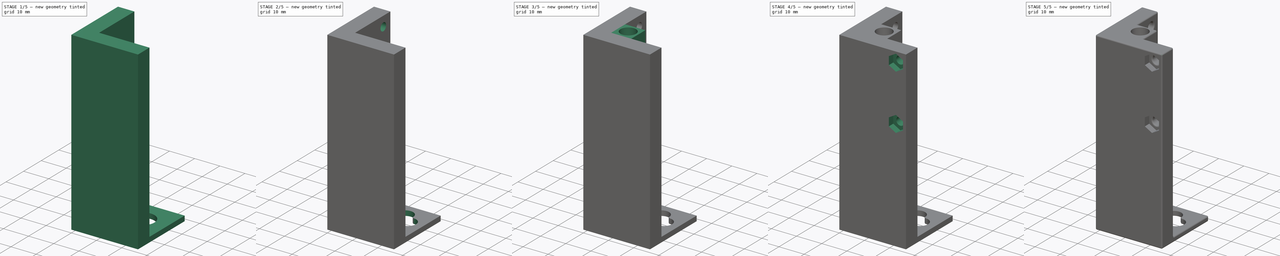
[diagram: build sequence overview — one tinted view per stage of 5, left to right]
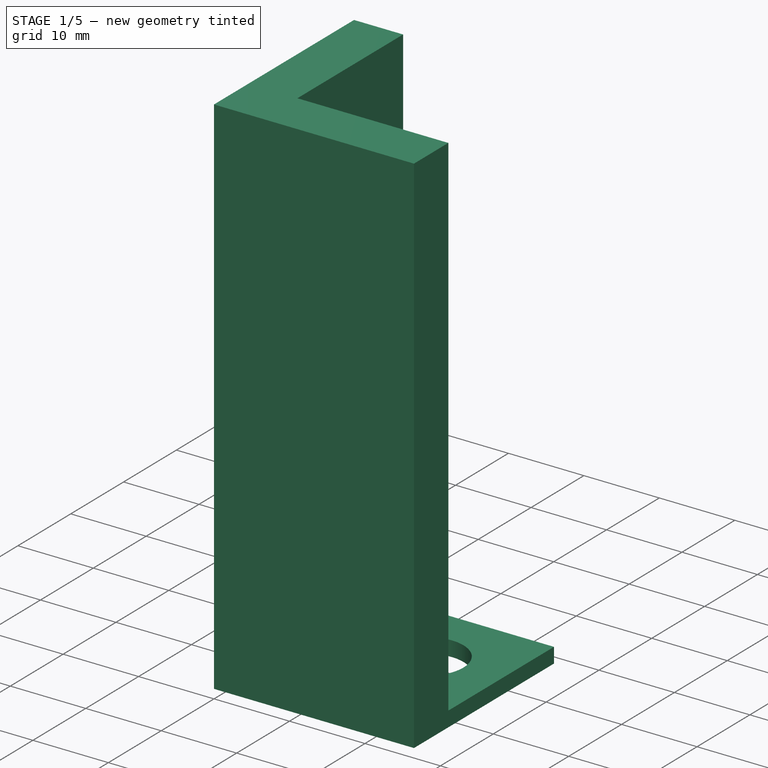
[diagram: stage 1 of 5 — iso view after this stage's code; geometry added in this stage tinted green]
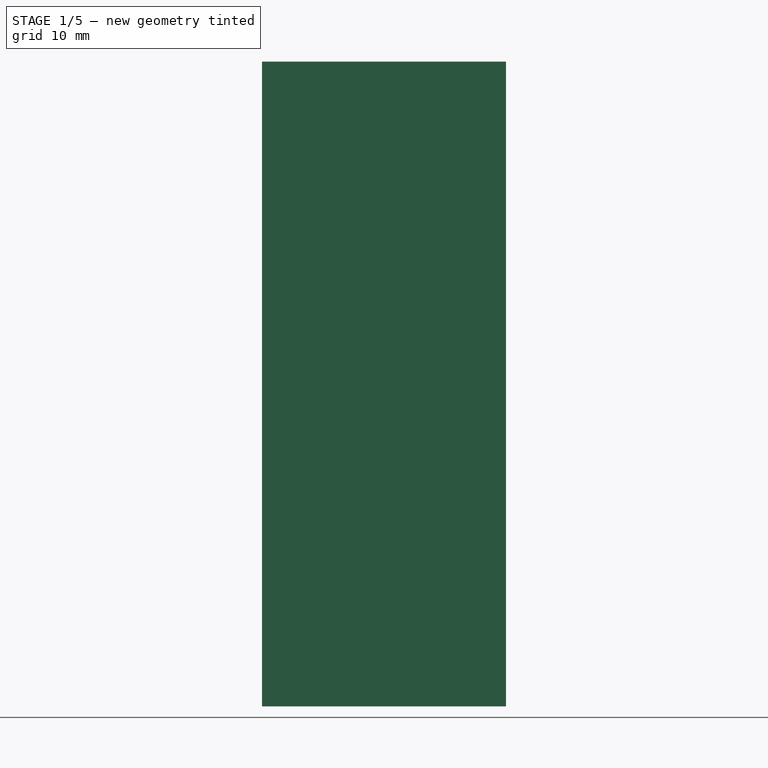
[diagram: stage 1 of 5 — front view after this stage's code; geometry added in this stage tinted green]
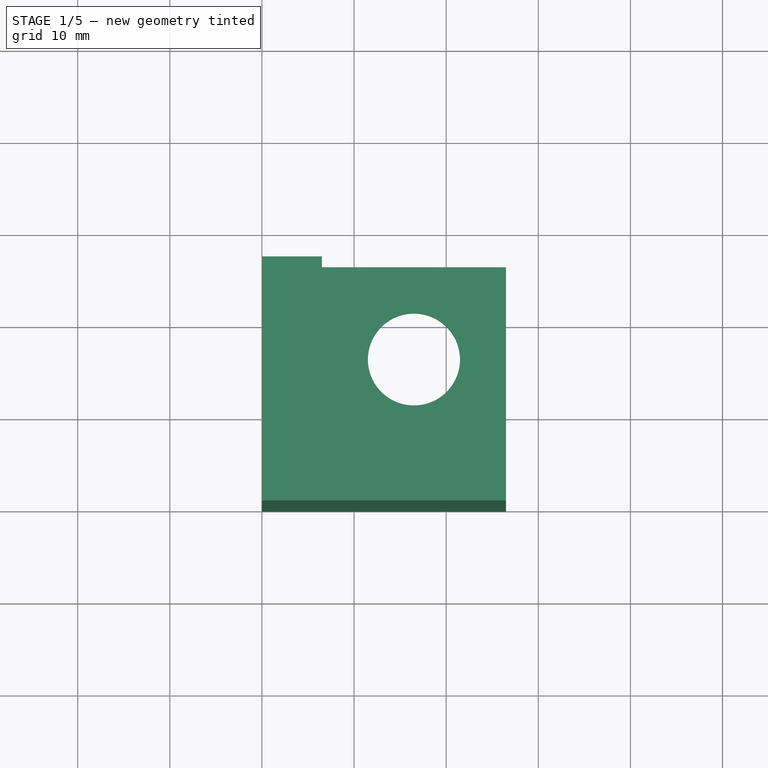
[diagram: stage 1 of 5 — top view after this stage's code; geometry added in this stage tinted green]
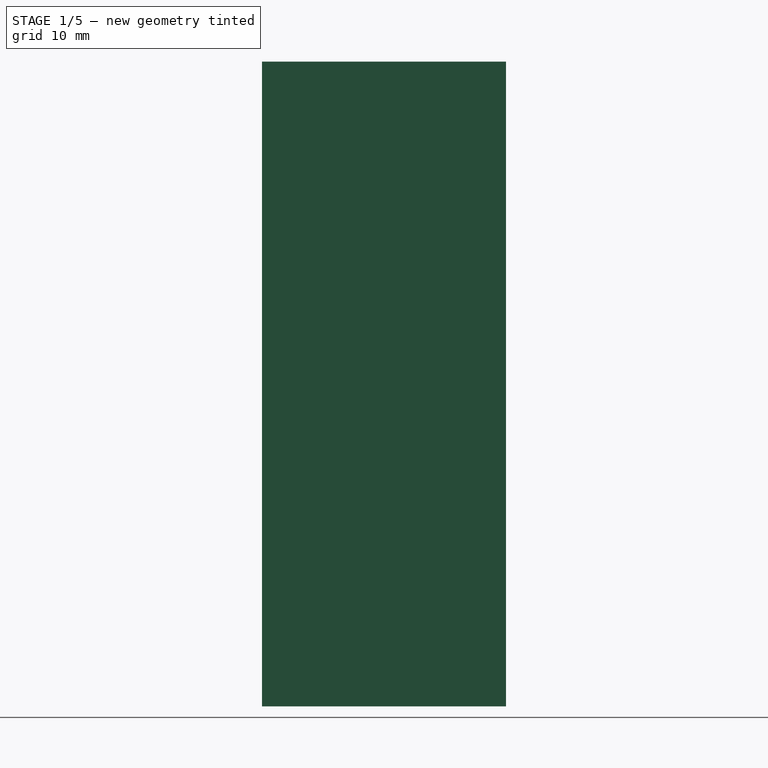
[diagram: stage 1 of 5 — right view after this stage's code; geometry added in this stage tinted green]
FCSTD DOCUMENT  (FreeCAD 0.18.4R)
Label: supportMain_v1
License: All rights reserved
LicenseURL: http://en.wikipedia.org/wiki/All_rights_reserved
objects: Sketcher::SketchObject×9, PartDesign::Pocket×7, PartDesign::Mirrored×4, Part::Plane×3, PartDesign::Fillet×3, PartDesign::Pad×2, PartDesign::MultiTransform×2, Part::Line×1, PartDesign::PolarPattern×1, PartDesign::Body×1
note: 42 computed .brp shape members not serialized (recipe doc carries the construction recipe); baked Part::Feature solids carry a one-line shape summary decoded from their .brp

FEATURE [Sketcher::SketchObject] Sketch
  MapMode = 5
  Support = -> [XY_Plane]
  sketch-geometry (4):
    g0: LineSegment StartX=0 StartY=26.5 StartZ=0 EndX=26.5 EndY=26.5 EndZ=0
    g1: LineSegment StartX=26.5 StartY=26.5 StartZ=0 EndX=26.5 EndY=0 EndZ=0
    g2: LineSegment StartX=26.5 StartY=0 StartZ=0 EndX=0 EndY=0 EndZ=0
    g3: LineSegment StartX=0 StartY=0 StartZ=0 EndX=0 EndY=26.5 EndZ=0
  constraints (12):
    c: Coincident(g0,g1)
    c: Coincident(g1,g2)
    c: Coincident(g2,g3)
    c: Coincident(g3,g0)
    c: Horizontal(g0)
    c: Horizontal(g2)
    c: Vertical(g1)
    c: Vertical(g3)
    c: DistanceX(g-1,g2) = 0
    c: DistanceY(g-1,g2) = 0
    c: DistanceY(g1,g0) = 26.5
    c: DistanceX(g0,g0) = 26.5
FEATURE [PartDesign::Pad] Pad  label="Pad_Main"
  Length = 70
  Length2 = 100
  Profile = -> Sketch
  Type = 0
FEATURE [Part::Plane] Plane  label="Plane_70mmHeigh"
  AttacherType = Attacher::AttachEngine3D
  Length = 10
  Placement = pos=(0,0,70) rot=(0,0,1;0rad)
  Width = 10
FEATURE [Sketcher::SketchObject] Sketch001
  MapMode = 5
  Placement = pos=(0,0,70) rot=(0,0,1;0rad)
  Support = -> [Plane]
  sketch-geometry (4):
    g0: LineSegment StartX=6.5 StartY=26.5 StartZ=0 EndX=26.5 EndY=26.5 EndZ=0
    g1: LineSegment StartX=26.5 StartY=26.5 StartZ=0 EndX=26.5 EndY=6.5 EndZ=0
    g2: LineSegment StartX=26.5 StartY=6.5 StartZ=0 EndX=6.5 EndY=6.5 EndZ=0
    g3: LineSegment StartX=6.5 StartY=6.5 StartZ=0 EndX=6.5 EndY=26.5 EndZ=0
  constraints (12):
    c: Coincident(g0,g1)
    c: Coincident(g1,g2)
    c: Coincident(g2,g3)
    c: Coincident(g3,g0)
    c: Horizontal(g0)
    c: Horizontal(g2)
    c: Vertical(g1)
    c: Vertical(g3)
    c: DistanceY(g1,g0) = 20
    c: DistanceX(g0,g0) = 20
    c: DistanceY(g-1,g2) = 6.5
    c: DistanceX(g-1,g2) = 6.5
FEATURE [PartDesign::Pocket] Pocket  label="Pocket_68mm"
  BaseFeature = -> Pad
  Length = 68
  Length2 = 100
  Profile = -> Sketch001
  Type = 0
FEATURE [Sketcher::SketchObject] Sketch002
  MapMode = 5
  Support = -> [XY_Plane]
  sketch-geometry (1):
    g0: Circle CenterX=16.5 CenterY=16.5 CenterZ=0 NormalX=0 NormalY=0 NormalZ=1 AngleXU=0 Radius=5
  constraints (3):
    c: Diameter(g0) = 10
    c: DistanceY(g-1,g0) = 16.5
    c: DistanceX(g-1,g0) = 16.5
FEATURE [PartDesign::Pocket] Pocket001  label="Pocket_MainSup"
  BaseFeature = -> Pocket
  Length = 2
  Length2 = 100
  Profile = -> Sketch002
  Reversed = true
  Type = 0
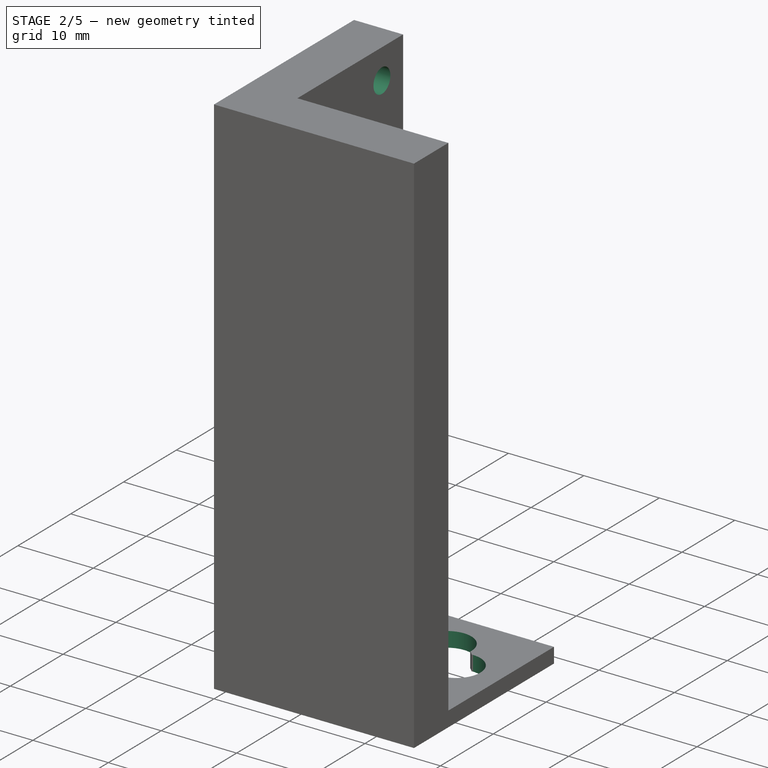
[diagram: stage 2 of 5 — iso view after this stage's code; geometry added in this stage tinted green]
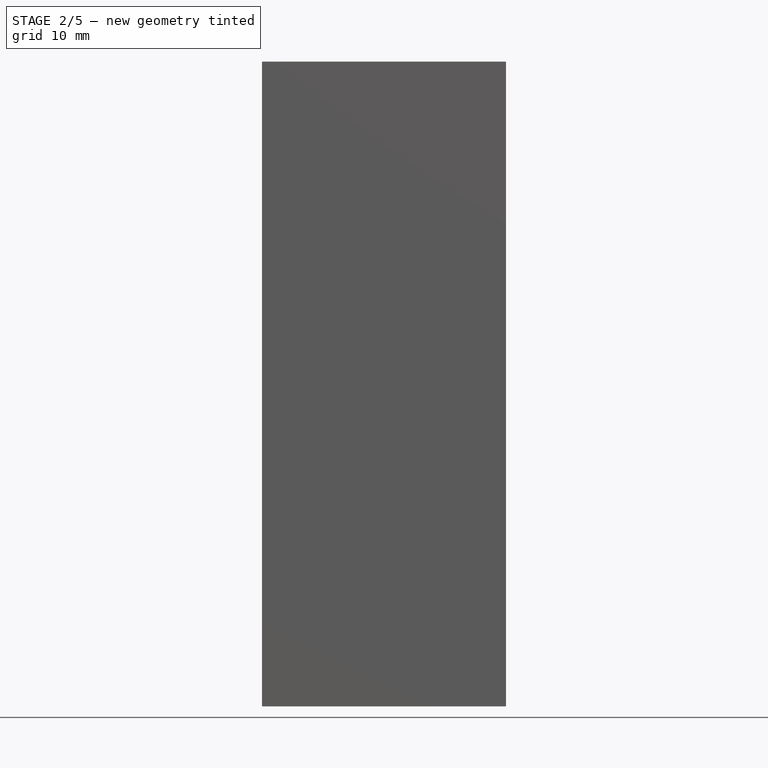
[diagram: stage 2 of 5 — front view after this stage's code; geometry added in this stage tinted green]
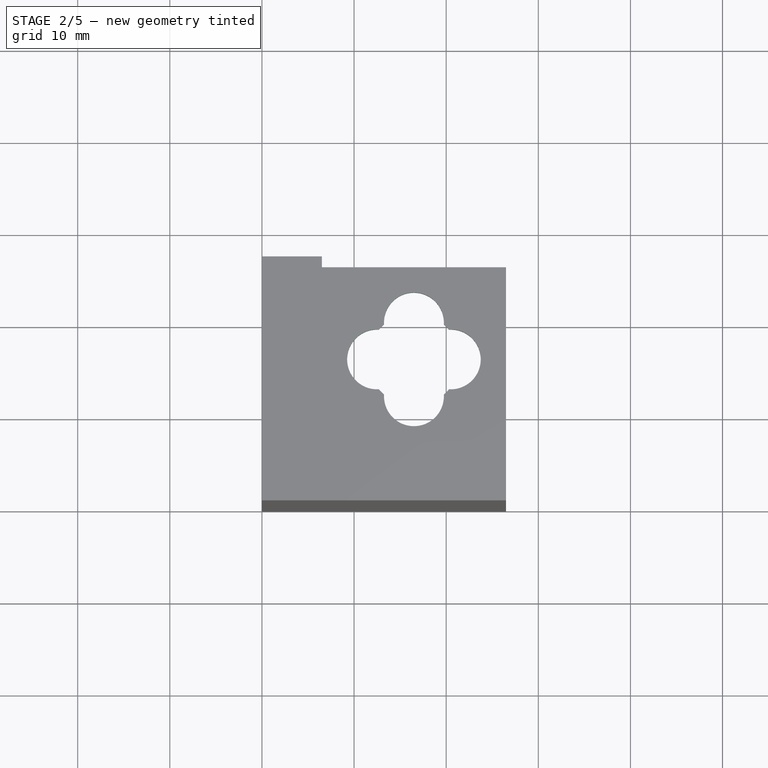
[diagram: stage 2 of 5 — top view after this stage's code; geometry added in this stage tinted green]
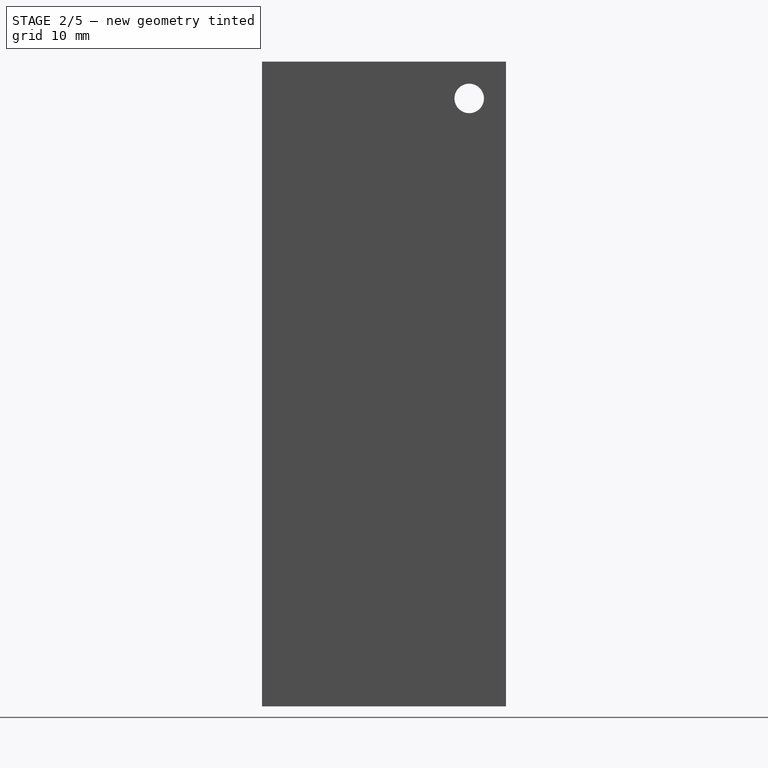
[diagram: stage 2 of 5 — right view after this stage's code; geometry added in this stage tinted green]
FEATURE [Sketcher::SketchObject] Sketch003
  MapMode = 5
  Support = -> [XY_Plane]
  sketch-geometry (4):
    g0: LineSegment StartX=13.25 StartY=12.5 StartZ=0 EndX=13.25 EndY=14.5 EndZ=0
    g1: LineSegment StartX=13.25 StartY=14.5 StartZ=0 EndX=19.75 EndY=14.5 EndZ=0
    g2: LineSegment StartX=19.75 StartY=14.5 StartZ=0 EndX=19.75 EndY=12.5 EndZ=0
    g3: ArcOfCircle CenterX=16.5 CenterY=12.5 CenterZ=0 NormalX=0 NormalY=0 NormalZ=1 AngleXU=0 Radius=3.25 StartAngle=3.14159 EndAngle=6.28318
  constraints (12):
    c: Diameter(g3) = 6.5
    c: Parallel(g2,g-2)
    c: Coincident(g3,g2)
    c: Tangent(g3,g2)
    c: Tangent(g0,g3) = 1.5708
    c: Parallel(g0,g2)
    c: Coincident(g1,g0)
    c: Coincident(g1,g2)
    c: DistanceY(g2,g1) = 2
    c: Equal(g0,g2)
    c: DistanceX(g-1,g3) = 16.5
    c: DistanceY(g-1,g3) = 12.5
FEATURE [PartDesign::Pocket] Pocket002  label="Pocket_AuxSup"
  BaseFeature = -> Pocket001
  Length = 2
  Length2 = 100
  Profile = -> Sketch003
  Reversed = true
  Type = 0
FEATURE [Part::Line] Line  label="Line_10mm"
  AttacherType = Attacher::AttachEngine3D
  X1 = 16.5
  X2 = 16.5
  Y1 = 16.5
  Y2 = 16.5
  Z1 = 0
  Z2 = 10
FEATURE [PartDesign::PolarPattern] PolarPattern  label="PolarPattern_AuxSup"
  Angle = 360
  Axis = -> Line [Edge1]
  BaseFeature = -> Pocket002
  Occurrences = 4
  Originals = -> [Pocket002]
FEATURE [Sketcher::SketchObject] Sketch004
  MapMode = 5
  Placement = pos=(0,0,0) rot=(0.57735,0.57735,0.57735;2.0944rad)
  Support = -> [YZ_Plane]
  sketch-geometry (1):
    g0: Circle CenterX=22.5 CenterY=66 CenterZ=0 NormalX=0 NormalY=0 NormalZ=1 AngleXU=0 Radius=1.6
  constraints (3):
    c: Diameter(g0) = 3.2
    c: DistanceX(g-1,g0) = 22.5
    c: DistanceY(g-1,g0) = 66
FEATURE [PartDesign::Pocket] Pocket003  label="Pocket_Screw"
  BaseFeature = -> PolarPattern
  Length = 6.5
  Length2 = 100
  Profile = -> Sketch004
  Reversed = true
  Type = 0
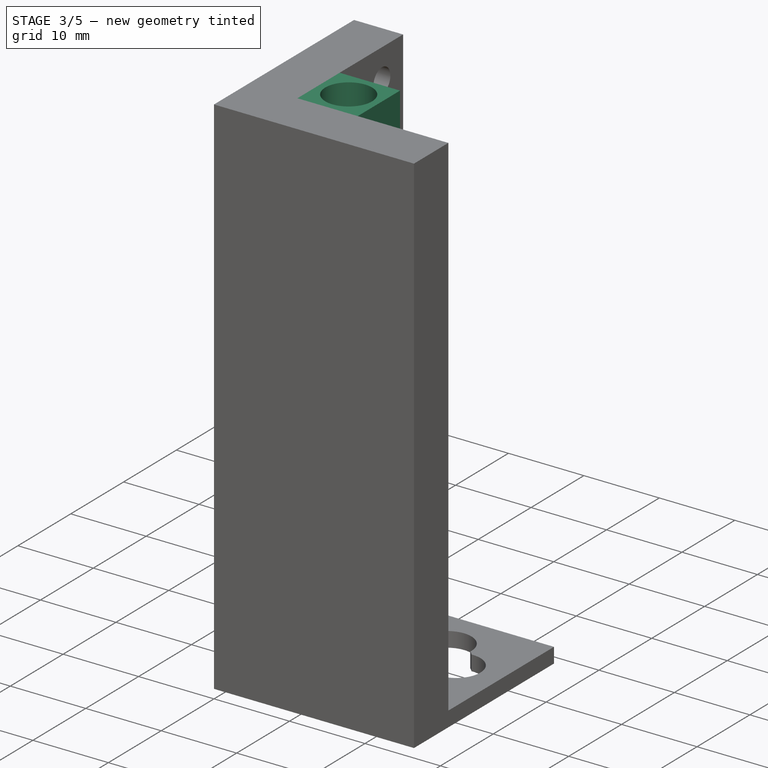
[diagram: stage 3 of 5 — iso view after this stage's code; geometry added in this stage tinted green]
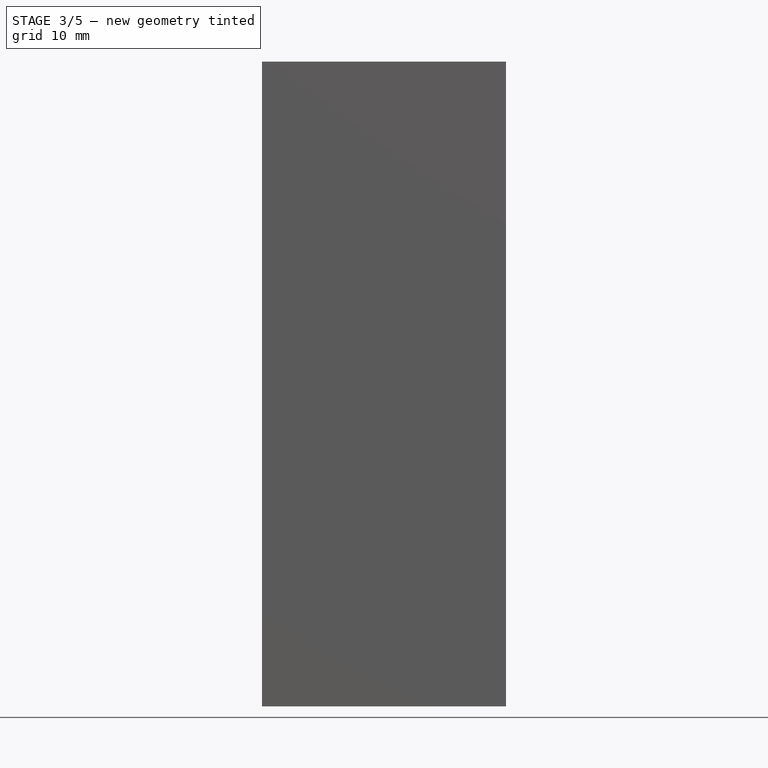
[diagram: stage 3 of 5 — front view after this stage's code; geometry added in this stage tinted green]
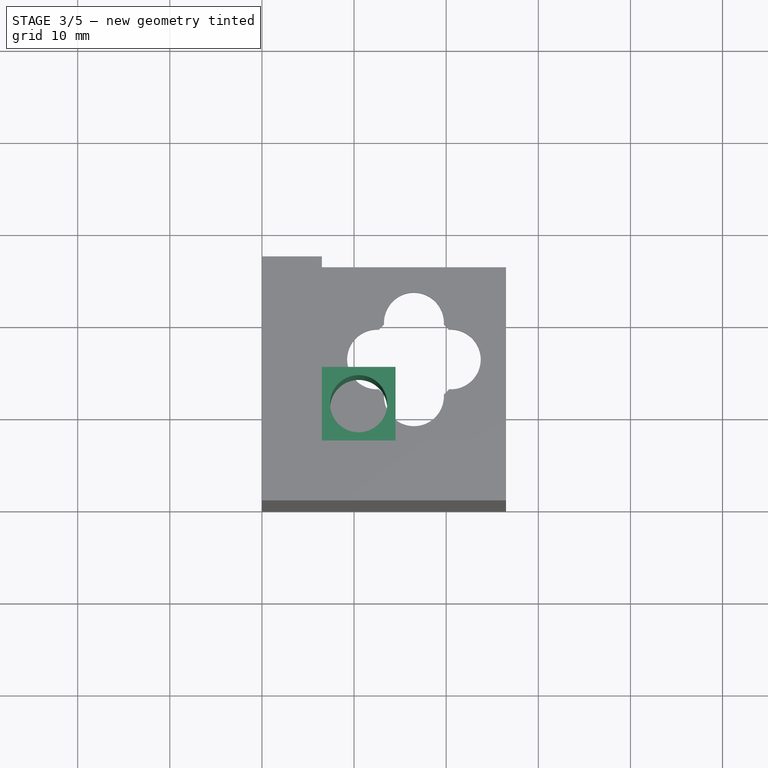
[diagram: stage 3 of 5 — top view after this stage's code; geometry added in this stage tinted green]
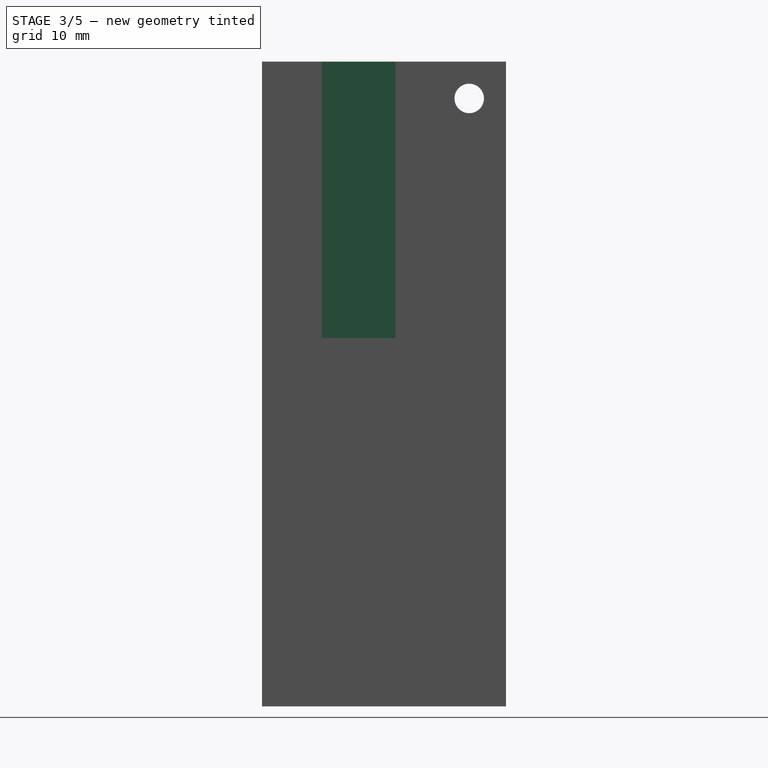
[diagram: stage 3 of 5 — right view after this stage's code; geometry added in this stage tinted green]
FEATURE [Sketcher::SketchObject] Sketch005
  MapMode = 5
  Placement = pos=(0,0,0) rot=(0.57735,0.57735,0.57735;2.0944rad)
  Support = -> [YZ_Plane]
  sketch-geometry (7):
    g0: LineSegment StartX=25.3146 StartY=64.375 StartZ=0 EndX=25.3146 EndY=67.625 EndZ=0
    g1: LineSegment StartX=25.3146 StartY=67.625 StartZ=0 EndX=22.5 EndY=69.25 EndZ=0
    g2: LineSegment StartX=22.5 StartY=69.25 StartZ=0 EndX=19.6854 EndY=67.625 EndZ=0
    g3: LineSegment StartX=19.6854 StartY=67.625 StartZ=0 EndX=19.6854 EndY=64.375 EndZ=0
    g4: LineSegment StartX=19.6854 StartY=64.375 StartZ=0 EndX=22.5 EndY=62.75 EndZ=0
    g5: LineSegment StartX=22.5 StartY=62.75 StartZ=0 EndX=25.3146 EndY=64.375 EndZ=0
    g6: Circle [constr] CenterX=22.5 CenterY=66 CenterZ=0 NormalX=0 NormalY=0 NormalZ=1 AngleXU=0 Radius=3.25
  constraints (17):
    c: Coincident(g0,g1)
    c: Coincident(g1,g2)
    c: Coincident(g2,g3)
    c: Coincident(g3,g4)
    c: Coincident(g4,g5)
    c: Coincident(g5,g0)
    c: Equal(g0, g1-g5) x5
    c: PointOnObject(g0,g6)
    c: PointOnObject(g1,g6)
    c: PointOnObject(g2,g6)
    c: PointOnObject(g3,g6)
    c: PointOnObject(g4,g6)
    c: PointOnObject(g5,g6)
    c: Diameter(g6) = 6.5
    c: Parallel(g3,g-2)
    c: DistanceX(g-1,g6) = 22.5
    c: DistanceY(g-1,g6) = 66
FEATURE [PartDesign::Pocket] Pocket004  label="Pocket_Nut"
  BaseFeature = -> Pocket003
  Length = 2.5
  Length2 = 100
  Profile = -> Sketch005
  Reversed = true
  Type = 0
FEATURE [Part::Plane] Plane001  label="Plane_diagonal"
  AttacherType = Attacher::AttachEngine3D
  Length = 10
  Placement = pos=(10,10,40) rot=(-0.707107,-0.707107,0;1.5708rad)
  Width = 10
FEATURE [Part::Plane] Plane002  label="Plane_holes"
  AttacherType = Attacher::AttachEngine3D
  Length = 10
  Placement = pos=(10,10,55) rot=(0,0,1;0rad)
  Width = 10
FEATURE [Sketcher::SketchObject] Sketch006
  MapMode = 5
  Placement = pos=(0,0,70) rot=(0,0,1;0rad)
  Support = -> [Plane]
  sketch-geometry (4):
    g0: LineSegment StartX=0 StartY=14.5 StartZ=0 EndX=14.5 EndY=14.5 EndZ=0
    g1: LineSegment StartX=14.5 StartY=14.5 StartZ=0 EndX=14.5 EndY=0 EndZ=0
    g2: LineSegment StartX=14.5 StartY=0 StartZ=0 EndX=0 EndY=0 EndZ=0
    g3: LineSegment StartX=0 StartY=0 StartZ=0 EndX=0 EndY=14.5 EndZ=0
  constraints (12):
    c: Coincident(g0,g1)
    c: Coincident(g1,g2)
    c: Coincident(g2,g3)
    c: Coincident(g3,g0)
    c: Horizontal(g0)
    c: Horizontal(g2)
    c: Vertical(g1)
    c: Vertical(g3)
    c: DistanceY(g-1,g2) = 0
    c: DistanceX(g-1,g2) = 0
    c: DistanceX(g0,g0) = 14.5
    c: DistanceY(g1,g0) = 14.5
FEATURE [PartDesign::Pad] Pad001  label="Pad_LedHolder"
  BaseFeature = -> Pocket004
  Length = 30
  Length2 = 100
  Profile = -> Sketch006
  Reversed = true
  Type = 0
FEATURE [Sketcher::SketchObject] Sketch007
  MapMode = 5
  Placement = pos=(0,0,70) rot=(0,0,1;0rad)
  Support = -> [Plane]
  sketch-geometry (1):
    g0: Circle CenterX=10.5 CenterY=10.5 CenterZ=0 NormalX=0 NormalY=0 NormalZ=1 AngleXU=0 Radius=3.1
  constraints (3):
    c: Diameter(g0) = 6.2
    c: DistanceX(g-1,g0) = 10.5
    c: DistanceY(g-1,g0) = 10.5
FEATURE [PartDesign::Pocket] Pocket005  label="Pocket_LedHolder"
  BaseFeature = -> Pad001
  Length = 30
  Length2 = 100
  Profile = -> Sketch007
  Type = 0
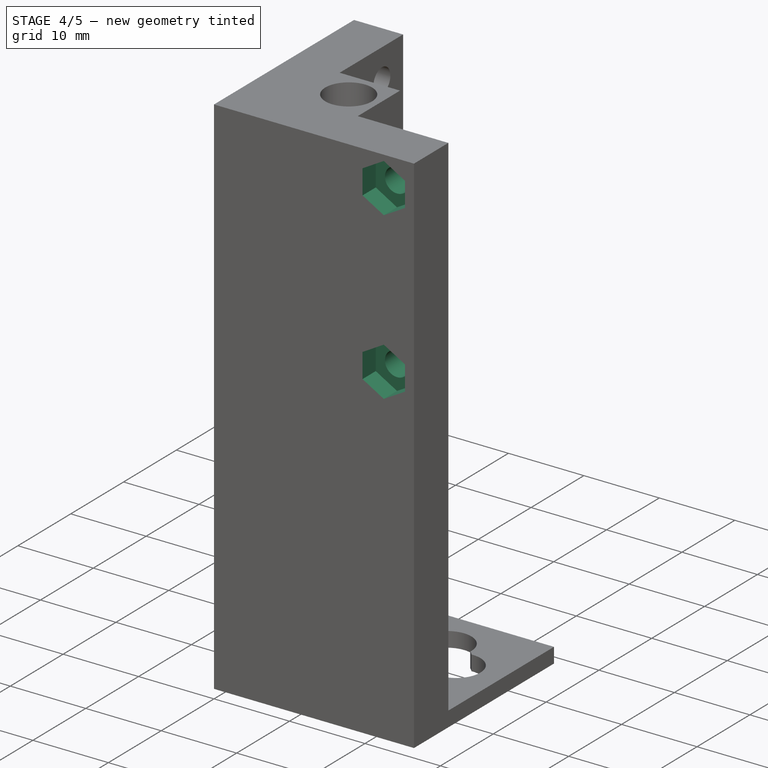
[diagram: stage 4 of 5 — iso view after this stage's code; geometry added in this stage tinted green]
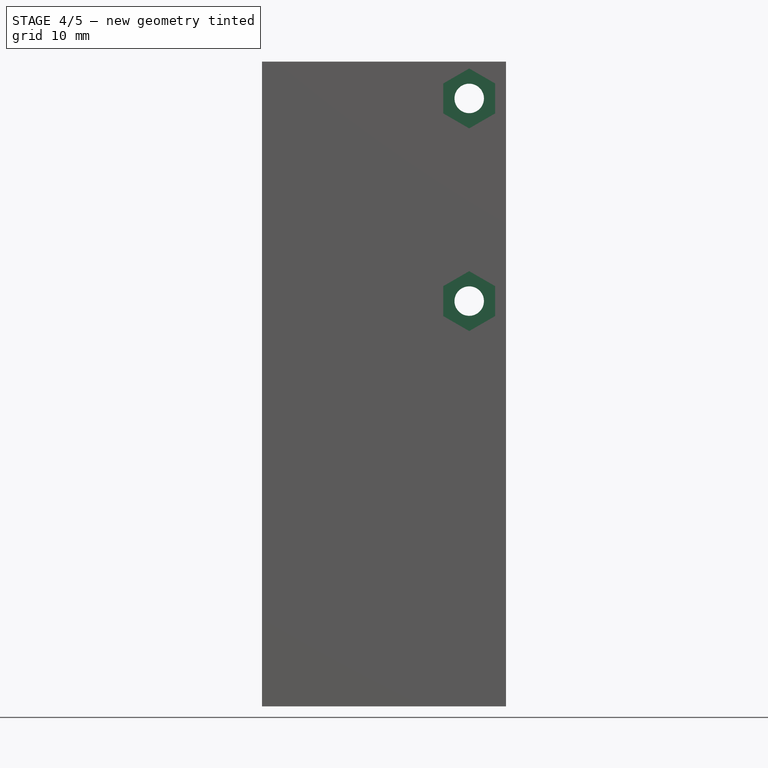
[diagram: stage 4 of 5 — front view after this stage's code; geometry added in this stage tinted green]
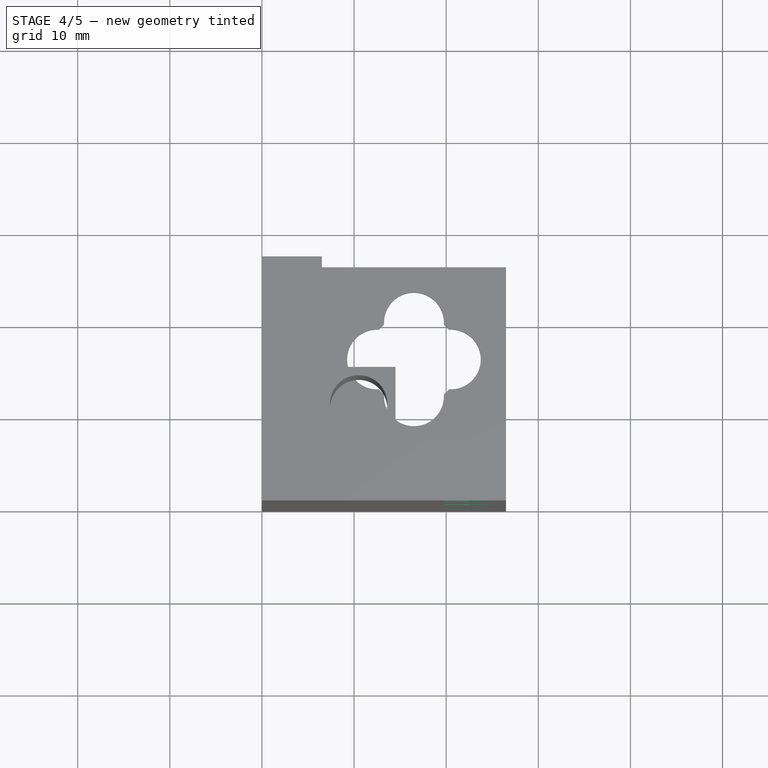
[diagram: stage 4 of 5 — top view after this stage's code; geometry added in this stage tinted green]
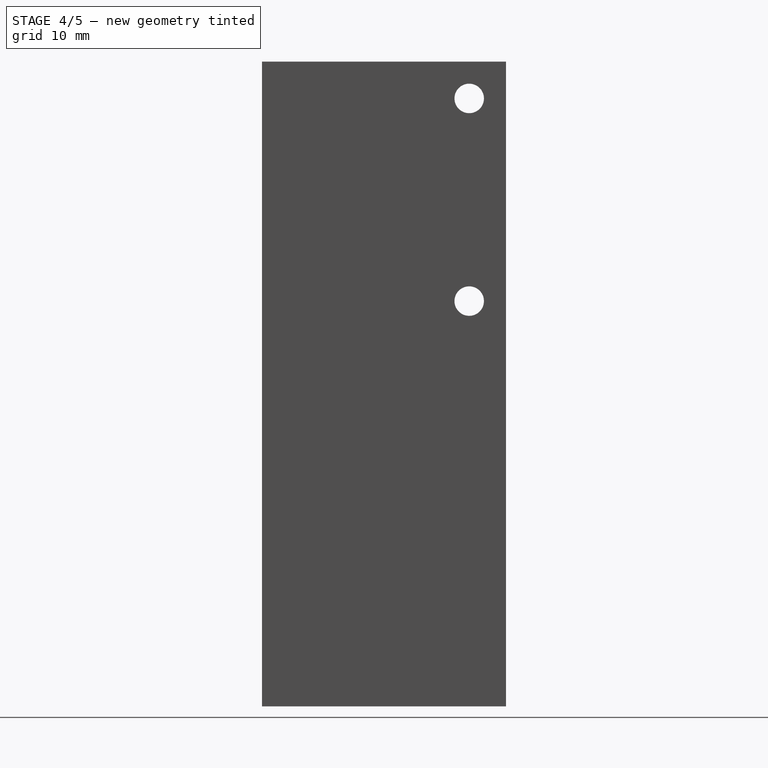
[diagram: stage 4 of 5 — right view after this stage's code; geometry added in this stage tinted green]
FEATURE [Sketcher::SketchObject] Sketch008
  MapMode = 5
  Placement = pos=(0,14.5,0) rot=(0,0.707107,0.707107;3.14159rad)
  Support = -> [Pocket005]
  sketch-geometry (1):
    g0: Circle CenterX=-10.5 CenterY=65 CenterZ=0 NormalX=0 NormalY=0 NormalZ=1 AngleXU=0 Radius=1.3
  constraints (3):
    c: Diameter(g0) = 2.6
    c: DistanceX(g0,g-1) = 10.5
    c: DistanceY(g-1,g0) = 65
FEATURE [PartDesign::Pocket] Pocket006
  BaseFeature = -> Pocket005
  Length = 4
  Length2 = 100
  Profile = -> Sketch008
  Type = 0
FEATURE [PartDesign::Mirrored] Mirrored
  MirrorPlane = -> Plane002 [Face1]
FEATURE [PartDesign::Mirrored] Mirrored001
  MirrorPlane = -> Plane001 [Face1]
FEATURE [PartDesign::MultiTransform] MultiTransform  label="MultiTransform_Screw"
  BaseFeature = -> Pocket006
  Originals = -> [Pocket003]
  Transformations = -> [Mirrored,Mirrored001]
FEATURE [PartDesign::Mirrored] Mirrored002
  MirrorPlane = -> Plane002 [Face1]
FEATURE [PartDesign::Mirrored] Mirrored003
  MirrorPlane = -> Plane001 [Face1]
FEATURE [PartDesign::MultiTransform] MultiTransform001  label="MultiTransform_Nut"
  BaseFeature = -> MultiTransform
  Originals = -> [Pocket004]
  Transformations = -> [Mirrored002,Mirrored003]
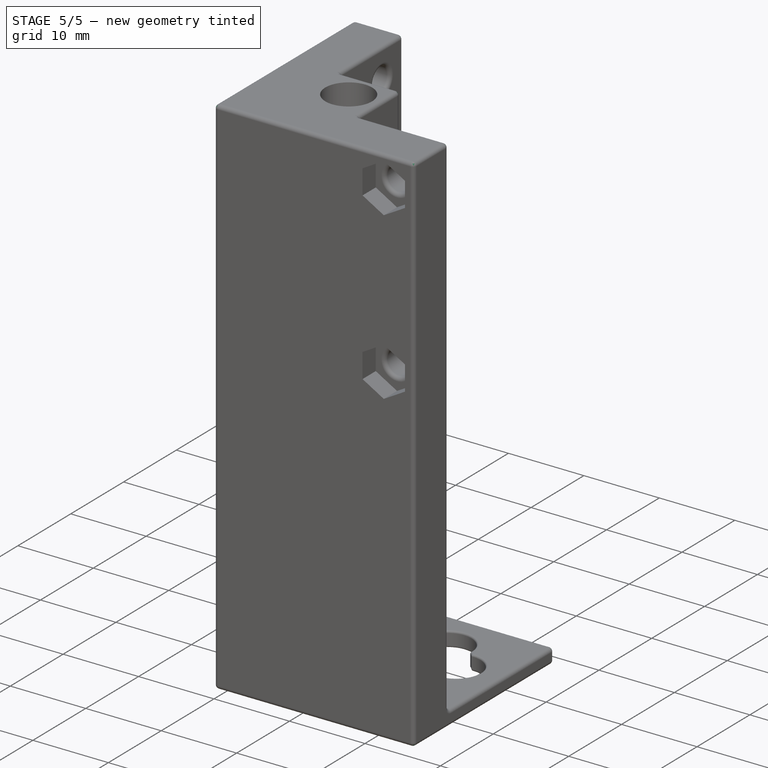
[diagram: stage 5 of 5 — iso view after this stage's code; geometry added in this stage tinted green]
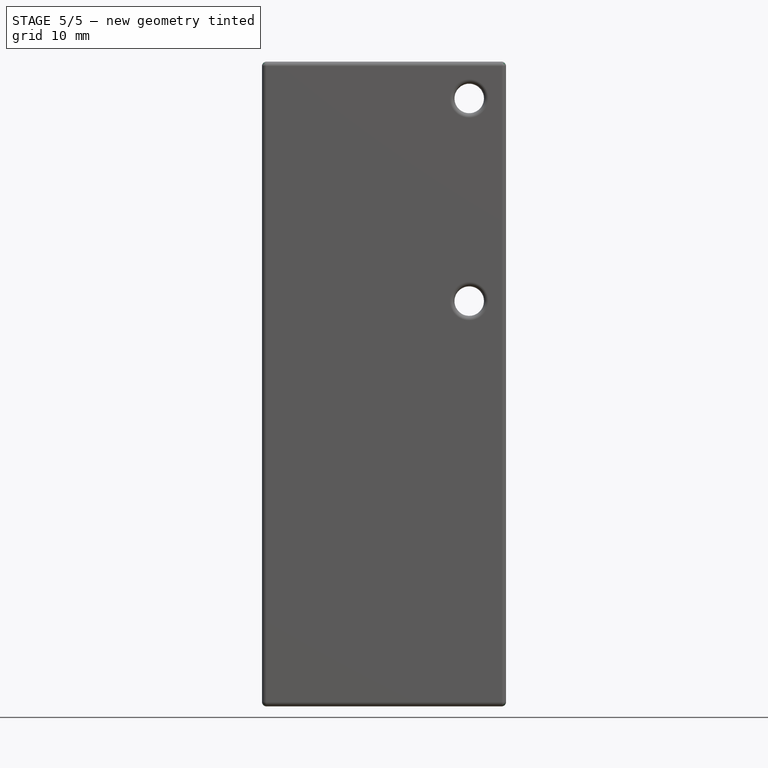
[diagram: stage 5 of 5 — front view after this stage's code; geometry added in this stage tinted green]
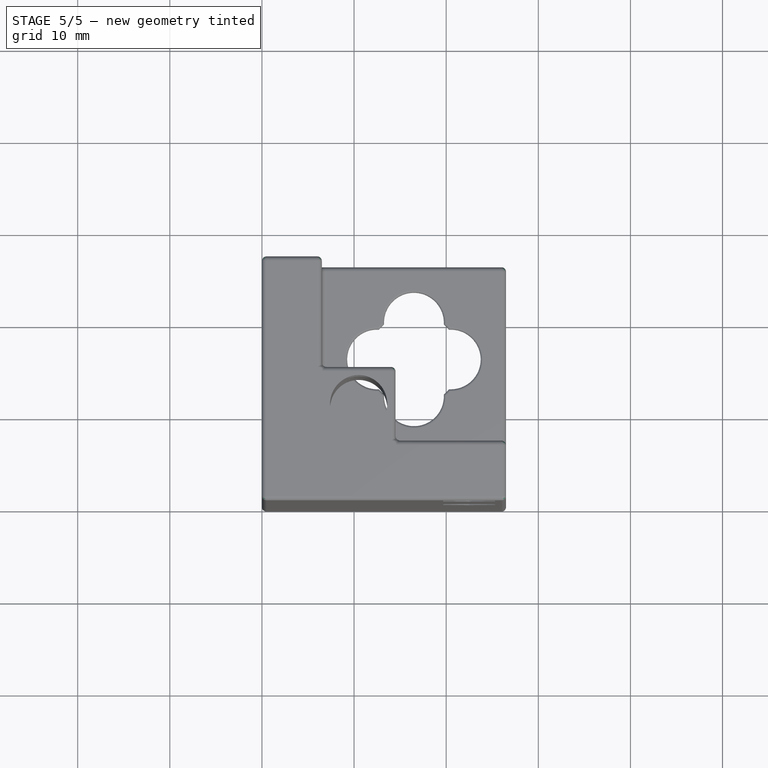
[diagram: stage 5 of 5 — top view after this stage's code; geometry added in this stage tinted green]
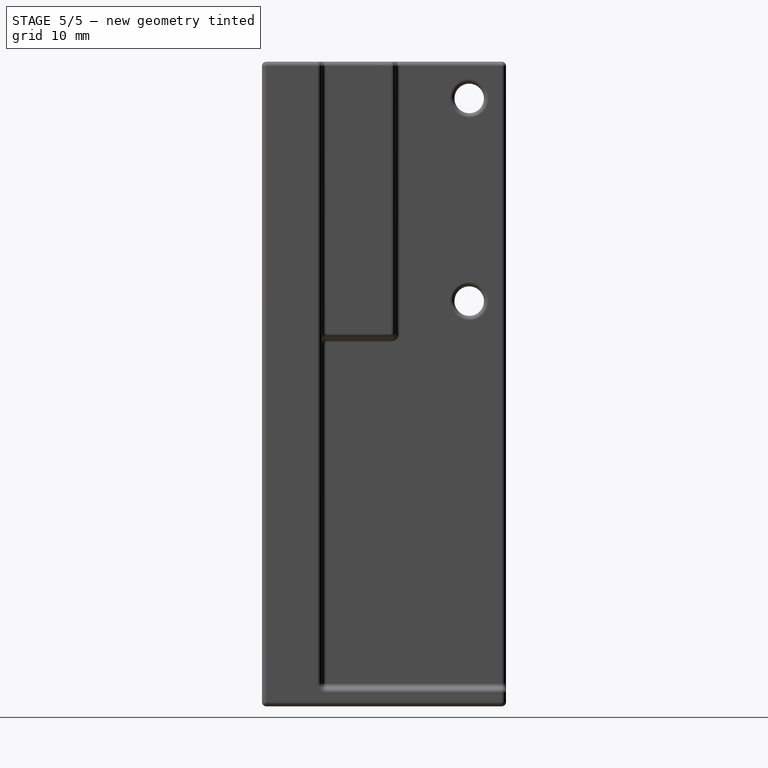
[diagram: stage 5 of 5 — right view after this stage's code; geometry added in this stage tinted green]
FEATURE [PartDesign::Fillet] Fillet  label="Fillet_General"
  Base = -> MultiTransform001 [Edge50,Edge112,Edge104,Edge109,Edge108,Edge48,Edge105,Edge49,Edge111,Edge171,Edge102,Edge27,Edge28,Edge26,Edge51,Edge4,Edge6,Edge5,Edge30,Edge31,Edge29,Edge8,Edge3,Edge2,Edge1,Edge55,Edge121,Edge118,Edge71,Edge9,Edge7,Edge56,Edge122]
  BaseFeature = -> MultiTransform001
  Radius = 0.5
FEATURE [PartDesign::Fillet] Fillet001  label="Fillet_Screw"
  Base = -> Fillet [Edge35,Edge36,Edge214,Edge213,Edge264,Edge266,Edge123,Edge121]
  BaseFeature = -> Fillet
  Radius = 0.5
FEATURE [PartDesign::Fillet] Fillet002  label="Fillet_Base"
  Base = -> Fillet001 [Edge70,Edge143,Edge69,Edge68,Edge140,Edge138,Edge67,Edge66,Edge135,Edge136,Edge71,Edge72,Edge73,Edge74,Edge75,Edge76,Edge77,Edge78,Edge65,Edge80,Edge79,Edge131,Edge162,Edge160,Edge159,Edge156,Edge154,Edge152,Edge151,Edge148,Edge146,Edge144]
  BaseFeature = -> Fillet001
  Radius = 0.25
FEATURE [PartDesign::Body] Body
  Group = -> [Sketch,Pad,Sketch001,Pocket,Sketch002,Pocket001,Sketch003,Pocket002,PolarPattern,Sketch004,Pocket003,Sketch005,Pocket004,Sketch006,Pad001,Sketch007,Pocket005,Sketch008,Pocket006,MultiTransform,Mirrored,Mirrored001,MultiTransform001,Mirrored002,Mirrored003,Fillet,Fillet001,Fillet002]
  Origin = -> Origin
  Tip = -> Fillet002
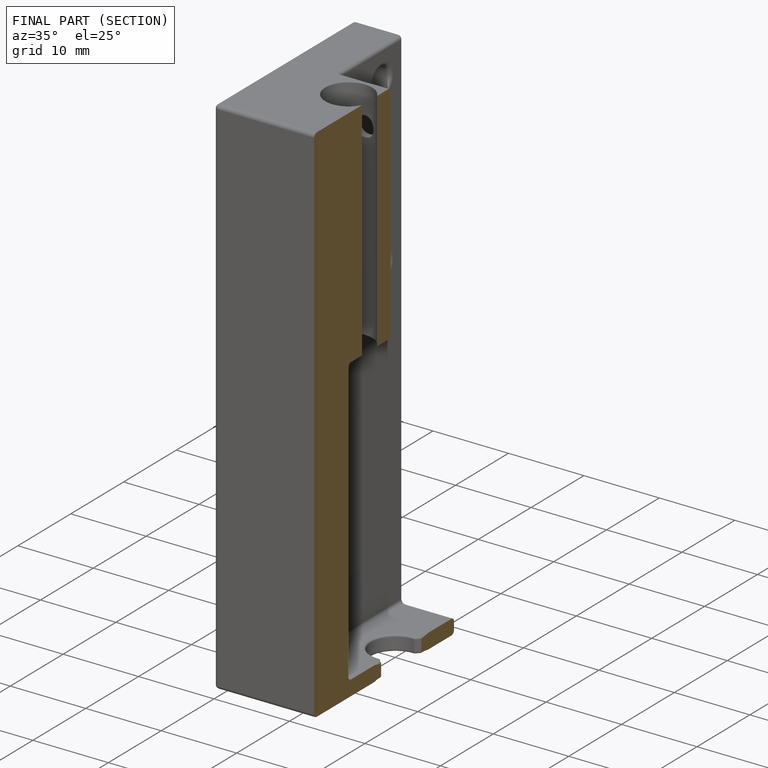
[diagram: finished part — half-section view (interior)]
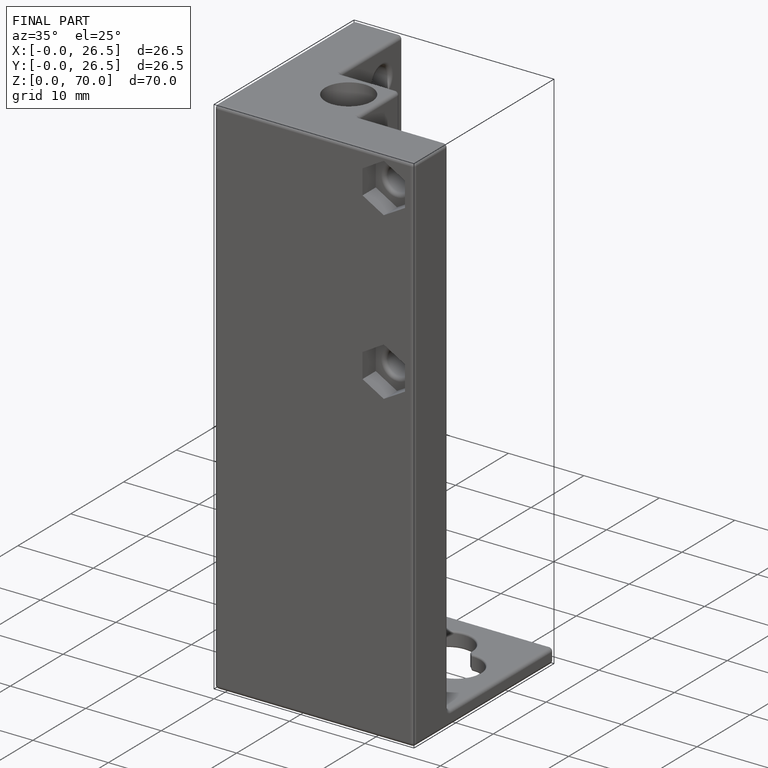
[diagram: finished part — iso view with bounding-box wireframe]
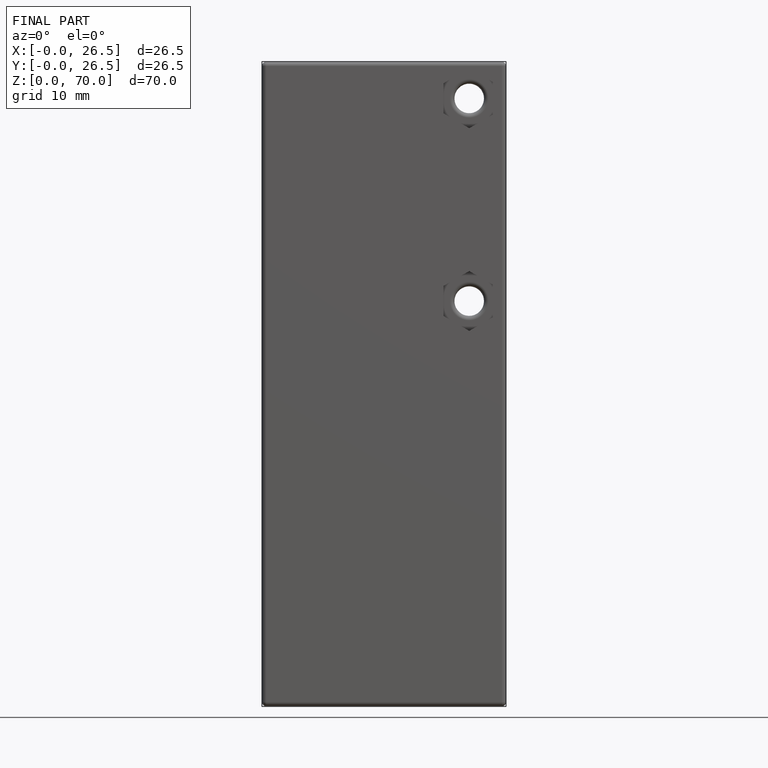
[diagram: finished part — front view with bounding-box wireframe]
